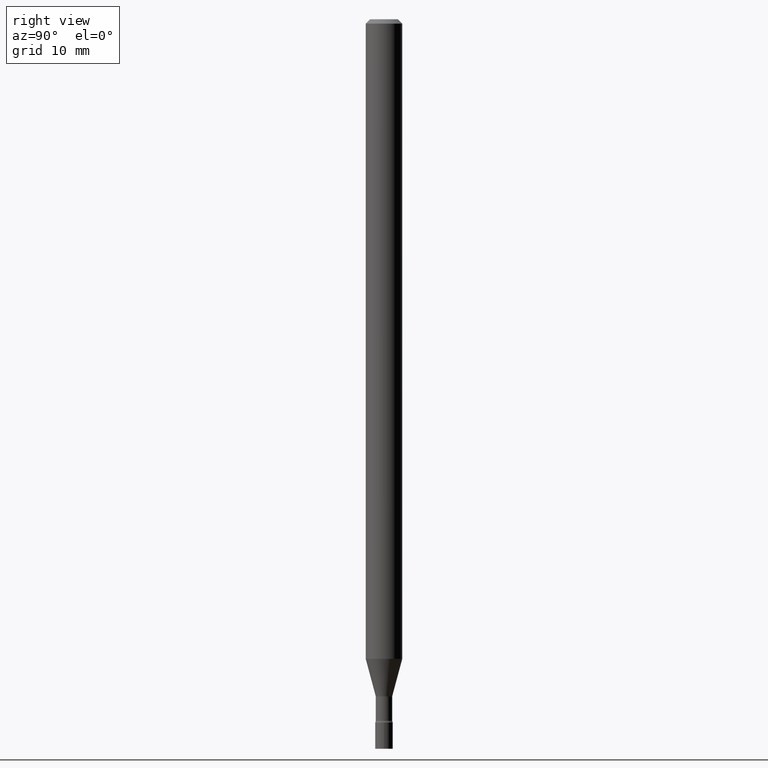
[diagram: clean part render]
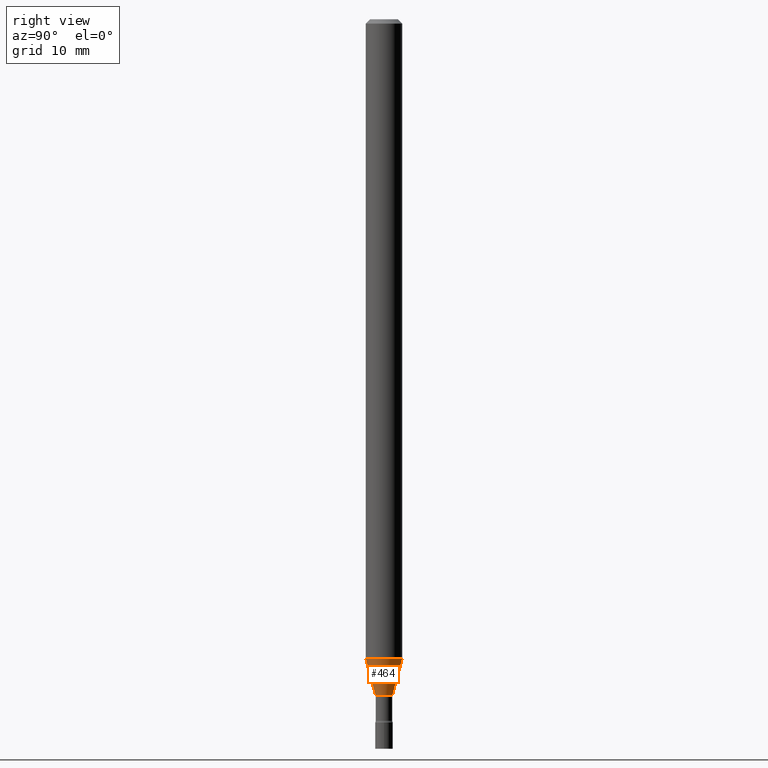
[diagram: same view with one face highlighted and labeled with its STEP entity id]
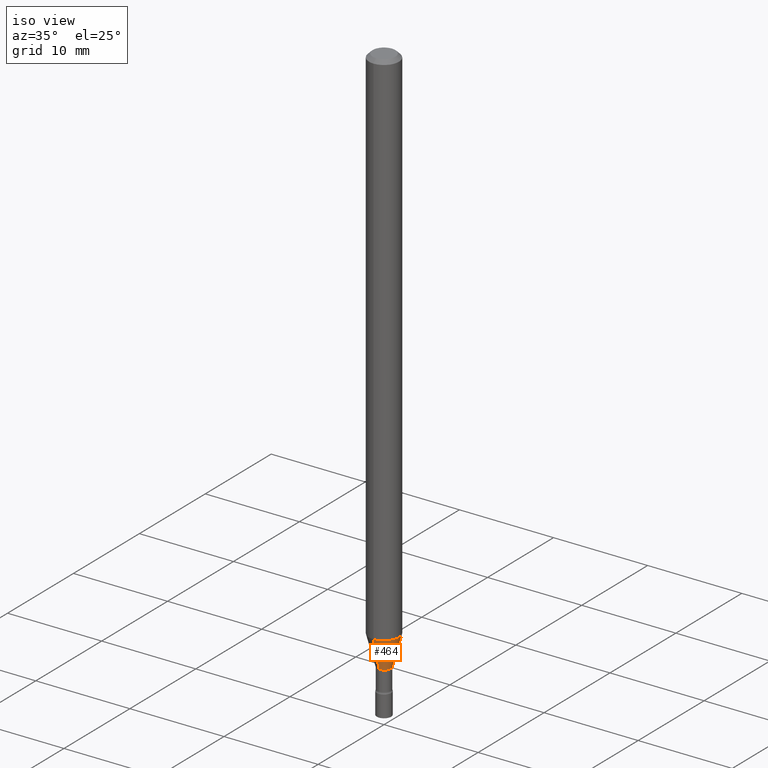
[diagram: same view with one face highlighted and labeled with its STEP entity id]
A machine part, right view. The second image highlights one B-rep face of the part: STEP entity #464.
A second angle (iso view) of the same face is appended — the face is thin or edge-on in the first view.
In plain terms, the highlighted conical surface has half-angle 15 deg.
Its self-contained STEP definition (entity closure, byte-faithful):
#21 = CIRCLE ( 'NONE', #114, 0.06250000000000000000 ) ;
#31 = CARTESIAN_POINT ( 'NONE',  ( 3.240469674128104223E-16, 0.02871111260565589046, -2.318092501787273108 ) ) ;
#34 = CARTESIAN_POINT ( 'NONE',  ( -4.364351673553382241E-16, -0.06250000000000768829, -2.191990657300387557 ) ) ;
#36 = CARTESIAN_POINT ( 'NONE',  ( 5.668924222215560136E-29, -8.093431616779605473E-15, -2.318092501787273108 ) ) ;
#66 = CARTESIAN_POINT ( 'NONE',  ( -2.004886277601425921E-16, -0.02871111260567207543, -2.318092501787273108 ) ) ;
#67 = EDGE_CURVE ( 'NONE', #199, #355, #21, .T. ) ;
#108 = DIRECTION ( 'NONE',  ( -6.982962677686265922E-15, -1.000000000000000000, 4.370956789862821150E-15 ) ) ;
#114 = AXIS2_PLACEMENT_3D ( 'NONE', #181, #495, #108 ) ;
#119 = AXIS2_PLACEMENT_3D ( 'NONE', #36, #165, #356 ) ;
#129 = DIRECTION ( 'NONE',  ( -1.807323732225328562E-15, -0.2588190451025179639, 0.9659258262890690894 ) ) ;
#140 = ORIENTED_EDGE ( 'NONE', *, *, #210, .T. ) ;
#145 = VERTEX_POINT ( 'NONE', #66 ) ;
#150 = VECTOR ( 'NONE', #129, 39.37007874015748854 ) ;
#165 = DIRECTION ( 'NONE',  ( -2.445512514209316848E-29, 3.491418746464813403E-15, 1.000000000000000000 ) ) ;
#173 = CARTESIAN_POINT ( 'NONE',  ( -2.004886277601425921E-16, -0.02871111260567207543, -2.318092501787273108 ) ) ;
#181 = CARTESIAN_POINT ( 'NONE',  ( 5.360540583458003873E-29, -7.653157272974302616E-15, -2.191990657300388001 ) ) ;
#199 = VERTEX_POINT ( 'NONE', #34 ) ;
#210 = EDGE_CURVE ( 'NONE', #241, #355, #354, .T. ) ;
#214 = DIRECTION ( 'NONE',  ( -6.982962677686265133E-15, -1.000000000000000000, 0.000000000000000000 ) ) ;
#241 = VERTEX_POINT ( 'NONE', #31 ) ;
#243 = ORIENTED_EDGE ( 'NONE', *, *, #417, .F. ) ;
#245 = CARTESIAN_POINT ( 'NONE',  ( 4.440892098501159629E-16, 0.06249999999999233252, -2.191990657300388001 ) ) ;
#276 = DIRECTION ( 'NONE',  ( -2.445512514209316848E-29, 3.491418746464813403E-15, 1.000000000000000000 ) ) ;
#292 = VECTOR ( 'NONE', #317, 39.37007874015748854 ) ;
#317 = DIRECTION ( 'NONE',  ( 1.839019923739598738E-15, 0.2588190451025247363, 0.9659258262890673130 ) ) ;
#322 = EDGE_LOOP ( 'NONE', ( #392, #140, #397, #243 ) ) ;
#330 = AXIS2_PLACEMENT_3D ( 'NONE', #448, #276, #214 ) ;
#354 = LINE ( 'NONE', #475, #292 ) ;
#355 = VERTEX_POINT ( 'NONE', #245 ) ;
#356 = DIRECTION ( 'NONE',  ( -6.982962677686265133E-15, -1.000000000000000000, 0.000000000000000000 ) ) ;
#364 = EDGE_CURVE ( 'NONE', #145, #241, #408, .T. ) ;
#392 = ORIENTED_EDGE ( 'NONE', *, *, #364, .T. ) ;
#397 = ORIENTED_EDGE ( 'NONE', *, *, #67, .F. ) ;
#402 = CONICAL_SURFACE ( 'NONE', #119, 0.02871111260566398468, 0.2617993877991500740 ) ;
#408 = CIRCLE ( 'NONE', #330, 0.02871111260566398468 ) ;
#417 = EDGE_CURVE ( 'NONE', #145, #199, #482, .T. ) ;
#442 = FACE_OUTER_BOUND ( 'NONE', #322, .T. ) ;
#448 = CARTESIAN_POINT ( 'NONE',  ( 5.668924222215560136E-29, -8.093431616779605473E-15, -2.318092501787273108 ) ) ;
#464 = ADVANCED_FACE ( 'NONE', ( #442 ), #402, .T. ) ;
#475 = CARTESIAN_POINT ( 'NONE',  ( 2.040047249755045120E-16, 0.02871111260565589046, -2.318092501787273108 ) ) ;
#482 = LINE ( 'NONE', #173, #150 ) ;
#495 = DIRECTION ( 'NONE',  ( -2.445512514209316848E-29, 3.491418746464813403E-15, 1.000000000000000000 ) ) ;